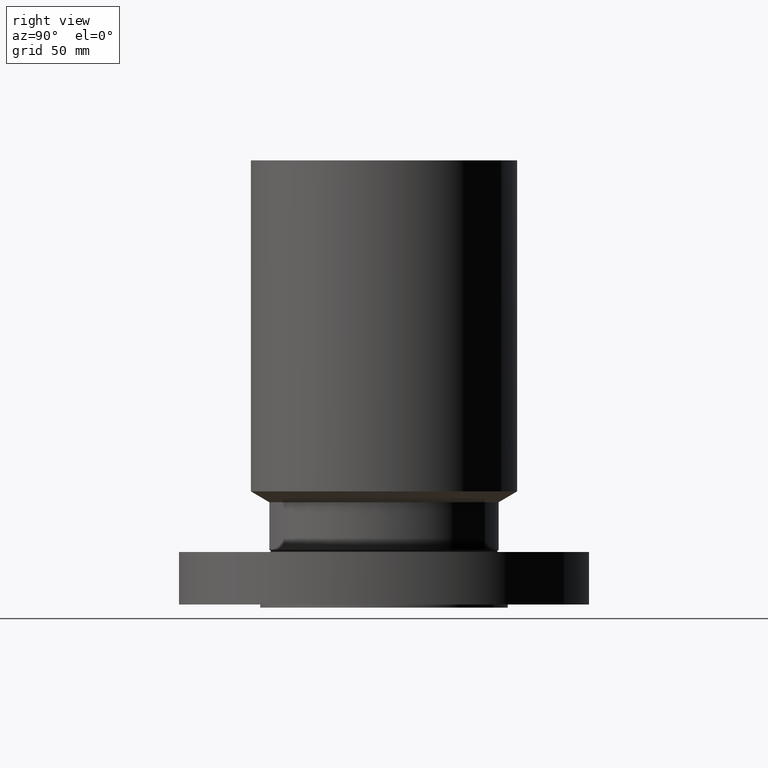
[diagram: clean part render]
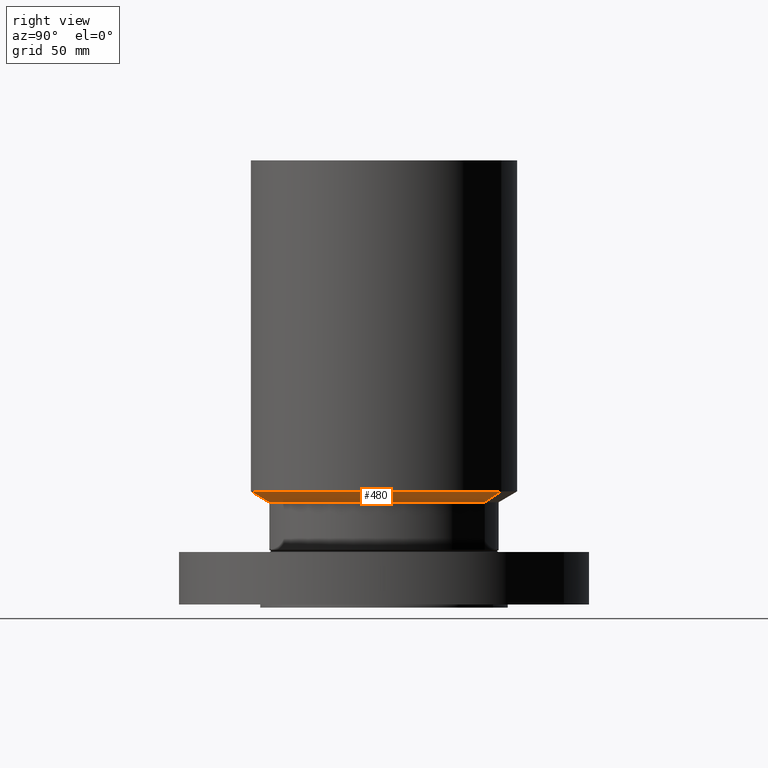
[diagram: same view with one face highlighted and labeled with its STEP entity id]
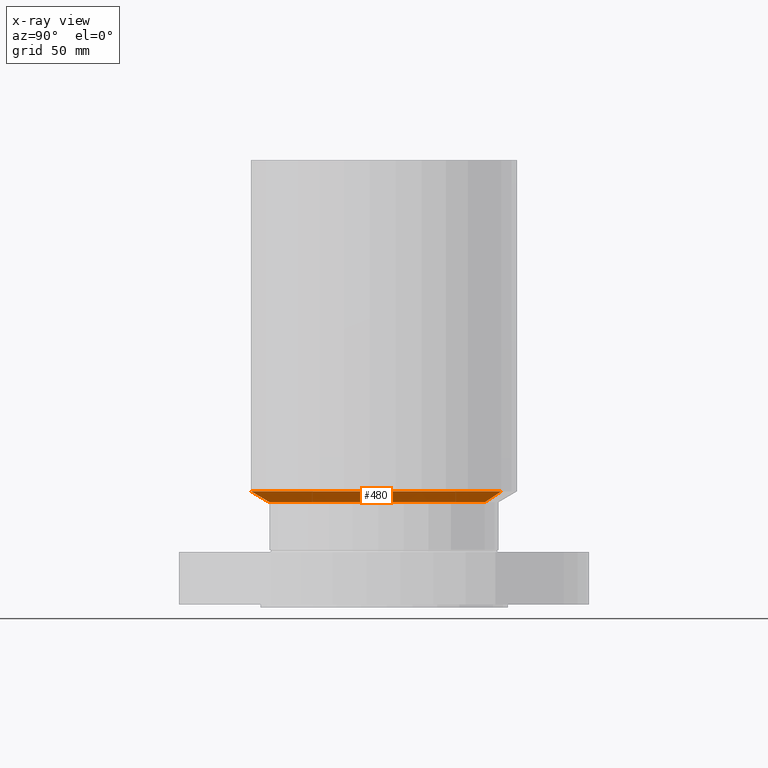
[diagram: x-ray of the same camera — body ghosted, the highlighted face saturated]
A machine part, right view. The second image highlights one B-rep face of the part: STEP entity #480.
The next image is the same camera in x-ray: the body ghosted, the highlighted face saturated — about 0% of this face is hidden behind the body in this view.
In plain terms, the highlighted conical surface has half-angle 60 deg.
Its self-contained STEP definition (entity closure, byte-faithful):
#421=AXIS2_PLACEMENT_3D('Circle Axis2P3D',#419,#420,$) ;
#453=AXIS2_PLACEMENT_3D('Cone Axis2P3D',#450,#451,#452) ;
#464=AXIS2_PLACEMENT_3D('Circle Axis2P3D',#462,#463,$) ;
#416=CARTESIAN_POINT('Vertex',(1.10747299418,2.02721571797,2.05750000001)) ;
#419=CARTESIAN_POINT('Axis2P3D Location',(0.,0.,2.05750000001)) ;
#423=CARTESIAN_POINT('Vertex',(-1.10747299418,-2.02721571797,2.05750000001)) ;
#450=CARTESIAN_POINT('Axis2P3D Location',(0.,0.,2.05750000001)) ;
#455=CARTESIAN_POINT('Line Origine',(1.19856384652,2.19395640473,2.16719655115)) ;
#459=CARTESIAN_POINT('Vertex',(1.28965469885,2.36069709149,2.2768931023)) ;
#462=CARTESIAN_POINT('Axis2P3D Location',(0.,0.,2.2768931023)) ;
#466=CARTESIAN_POINT('Vertex',(-1.28965469885,-2.36069709149,2.2768931023)) ;
#469=CARTESIAN_POINT('Line Origine',(-1.19856384652,-2.19395640473,2.16719655115)) ;
#420=DIRECTION('Axis2P3D Direction',(0.,0.,-0.0393700787402)) ;
#451=DIRECTION('Axis2P3D Direction',(-0.,-0.,0.0393700787402)) ;
#452=DIRECTION('Axis2P3D XDirection',(0.0188750212049,0.0345504945626,0.)) ;
#456=DIRECTION('Vector Direction',(0.0163462478604,0.0299216060045,0.0196850393701)) ;
#463=DIRECTION('Axis2P3D Direction',(-0.,0.,0.0393700787402)) ;
#470=DIRECTION('Vector Direction',(-0.0163462478604,-0.0299216060045,0.0196850393701)) ;
#457=VECTOR('Line Direction',#456,0.0393700787402) ;
#471=VECTOR('Line Direction',#470,0.0393700787402) ;
#475=ORIENTED_EDGE('',*,*,#425,.F.) ;
#476=ORIENTED_EDGE('',*,*,#461,.T.) ;
#477=ORIENTED_EDGE('',*,*,#468,.T.) ;
#478=ORIENTED_EDGE('',*,*,#473,.F.) ;
#480=ADVANCED_FACE('PartBody',(#479),#454,.T.) ;
#422=CIRCLE('generated circle',#421,2.31000000001) ;
#465=CIRCLE('generated circle',#464,2.69000000001) ;
#454=CONICAL_SURFACE('Cone',#453,2.31000000001,1.0471975512) ;
#425=EDGE_CURVE('',#417,#424,#422,.T.) ;
#461=EDGE_CURVE('',#417,#460,#458,.T.) ;
#468=EDGE_CURVE('',#460,#467,#465,.F.) ;
#473=EDGE_CURVE('',#424,#467,#472,.T.) ;
#474=EDGE_LOOP('',(#475,#476,#477,#478)) ;
#479=FACE_OUTER_BOUND('',#474,.T.) ;
#458=LINE('Line',#455,#457) ;
#472=LINE('Line',#469,#471) ;
#417=VERTEX_POINT('',#416) ;
#424=VERTEX_POINT('',#423) ;
#460=VERTEX_POINT('',#459) ;
#467=VERTEX_POINT('',#466) ;